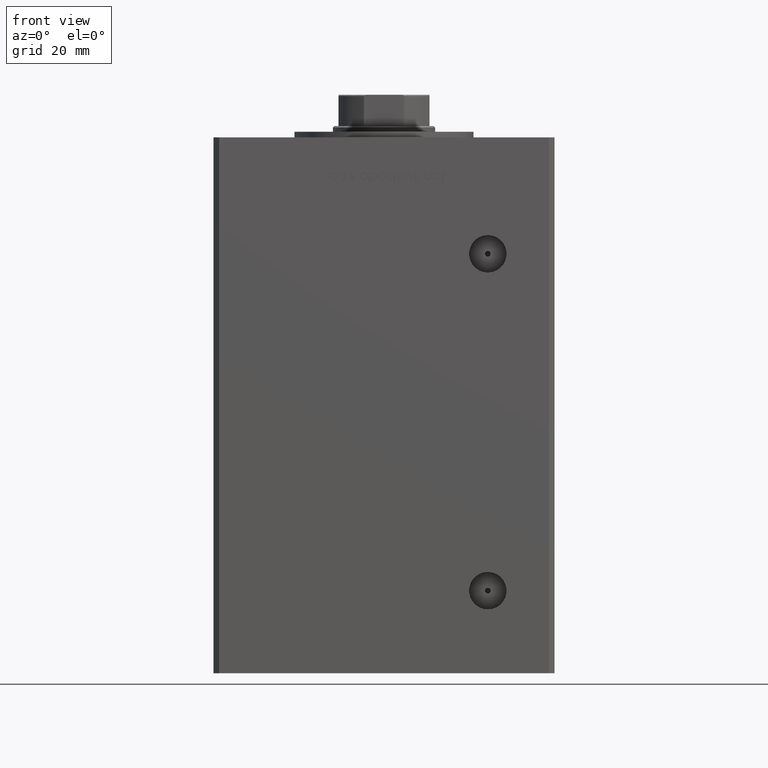
[diagram: clean part render]
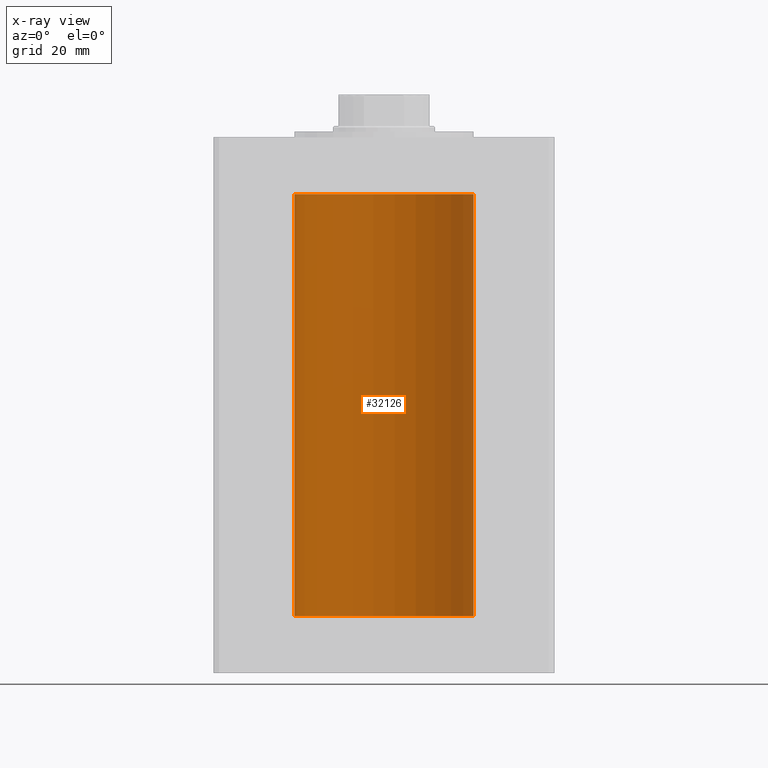
[diagram: x-ray — body ghosted, one internal face saturated and labeled with its STEP entity id]
A machine part, front view, then the same camera in x-ray: the body is ghosted and one INTERNAL B-rep face — a face not visible from any outside direction — is saturated and labeled: STEP entity #32126.
In plain terms, the highlighted cylindrical surface (partial cylindrical patch) has radius 31.5 mm, axis along (-0, -0, -1).
Its self-contained STEP definition (entity closure, byte-faithful):
#159 = EDGE_CURVE ( 'NONE', #29785, #12534, #4433, .T. ) ;
#2762 = EDGE_LOOP ( 'NONE', ( #29517, #28106, #7997, #40221 ) ) ;
#3410 = VECTOR ( 'NONE', #39486, 1000.000000000000000 ) ;
#3498 = DIRECTION ( 'NONE',  ( 1.000000000000000000, 0.000000000000000000, 0.000000000000000000 ) ) ;
#4433 = LINE ( 'NONE', #20495, #3410 ) ;
#5580 = VERTEX_POINT ( 'NONE', #28620 ) ;
#7286 = VERTEX_POINT ( 'NONE', #10940 ) ;
#7584 = CYLINDRICAL_SURFACE ( 'NONE', #11137, 31.50000000000000000 ) ;
#7997 = ORIENTED_EDGE ( 'NONE', *, *, #12075, .T. ) ;
#8459 = CARTESIAN_POINT ( 'NONE',  ( 0.000000000000000000, 0.000000000000000000, 0.000000000000000000 ) ) ;
#8865 = EDGE_CURVE ( 'NONE', #12534, #7286, #27603, .T. ) ;
#9405 = DIRECTION ( 'NONE',  ( -0.000000000000000000, 0.000000000000000000, 1.000000000000000000 ) ) ;
#10940 = CARTESIAN_POINT ( 'NONE',  ( -31.50000000000000000, 0.000000000000000000, 0.000000000000000000 ) ) ;
#11137 = AXIS2_PLACEMENT_3D ( 'NONE', #18377, #34480, #50556 ) ;
#11527 = FACE_OUTER_BOUND ( 'NONE', #2762, .T. ) ;
#12075 = EDGE_CURVE ( 'NONE', #5580, #7286, #44455, .T. ) ;
#12534 = VERTEX_POINT ( 'NONE', #29626 ) ;
#17290 = CARTESIAN_POINT ( 'NONE',  ( 0.000000000000000000, 0.000000000000000000, 148.5000000000000000 ) ) ;
#18377 = CARTESIAN_POINT ( 'NONE',  ( 0.000000000000000000, 0.000000000000000000, 148.5000000000000000 ) ) ;
#20495 = CARTESIAN_POINT ( 'NONE',  ( 31.50000000000000000, 3.857637417314162689E-15, 148.5000000000000000 ) ) ;
#21251 = DIRECTION ( 'NONE',  ( -0.000000000000000000, -0.000000000000000000, -1.000000000000000000 ) ) ;
#22411 = CARTESIAN_POINT ( 'NONE',  ( 31.50000000000000000, 3.857637417314162689E-15, 148.5000000000000000 ) ) ;
#24425 = CARTESIAN_POINT ( 'NONE',  ( -31.50000000000000000, 0.000000000000000000, 148.5000000000000000 ) ) ;
#27603 = CIRCLE ( 'NONE', #31829, 31.50000000000000000 ) ;
#28106 = ORIENTED_EDGE ( 'NONE', *, *, #31420, .T. ) ;
#28620 = CARTESIAN_POINT ( 'NONE',  ( -31.50000000000000000, 0.000000000000000000, 148.5000000000000000 ) ) ;
#28845 = CIRCLE ( 'NONE', #41486, 31.50000000000000000 ) ;
#29301 = VECTOR ( 'NONE', #21251, 1000.000000000000000 ) ;
#29517 = ORIENTED_EDGE ( 'NONE', *, *, #159, .F. ) ;
#29626 = CARTESIAN_POINT ( 'NONE',  ( 31.50000000000000000, 3.857637417314162689E-15, 0.000000000000000000 ) ) ;
#29785 = VERTEX_POINT ( 'NONE', #22411 ) ;
#31420 = EDGE_CURVE ( 'NONE', #29785, #5580, #28845, .T. ) ;
#31829 = AXIS2_PLACEMENT_3D ( 'NONE', #8459, #50318, #42931 ) ;
#32126 = ADVANCED_FACE ( 'NONE', ( #11527 ), #7584, .F. ) ;
#34480 = DIRECTION ( 'NONE',  ( -0.000000000000000000, -0.000000000000000000, -1.000000000000000000 ) ) ;
#39486 = DIRECTION ( 'NONE',  ( -0.000000000000000000, -0.000000000000000000, -1.000000000000000000 ) ) ;
#40221 = ORIENTED_EDGE ( 'NONE', *, *, #8865, .F. ) ;
#41486 = AXIS2_PLACEMENT_3D ( 'NONE', #17290, #9405, #3498 ) ;
#42931 = DIRECTION ( 'NONE',  ( 1.000000000000000000, 0.000000000000000000, 0.000000000000000000 ) ) ;
#44455 = LINE ( 'NONE', #24425, #29301 ) ;
#50318 = DIRECTION ( 'NONE',  ( -0.000000000000000000, 0.000000000000000000, 1.000000000000000000 ) ) ;
#50556 = DIRECTION ( 'NONE',  ( -1.000000000000000000, 0.000000000000000000, 0.000000000000000000 ) ) ;